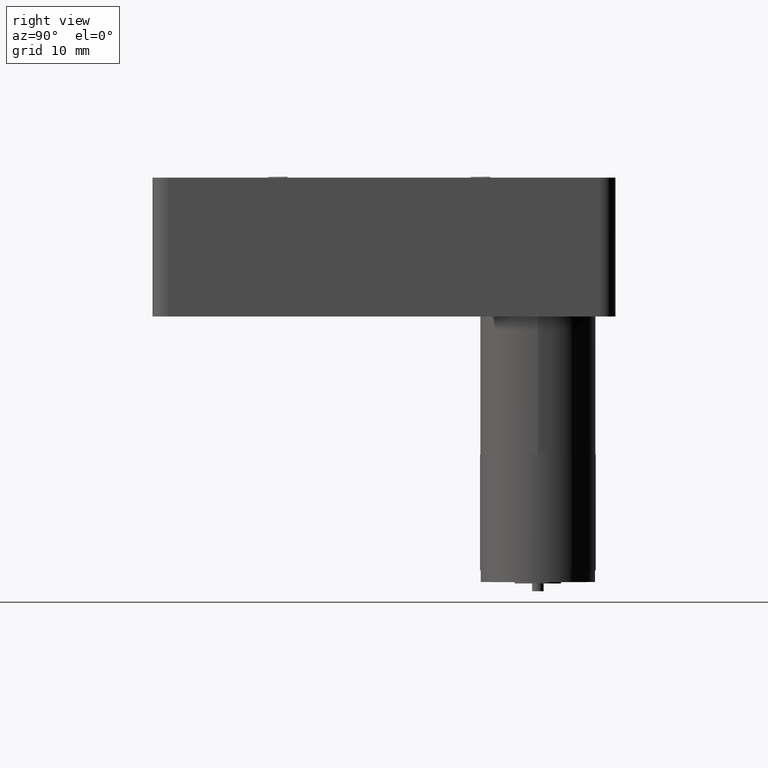
[diagram: clean part render]
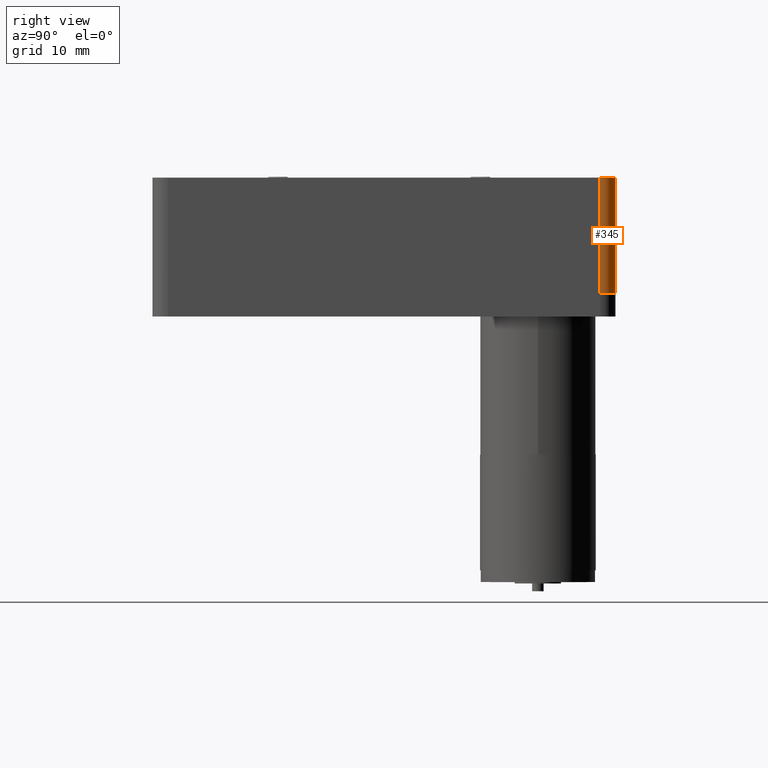
[diagram: same view with one face highlighted and labeled with its STEP entity id]
A machine part, right view. The second image highlights one B-rep face of the part: STEP entity #345.
In plain terms, the highlighted cylindrical surface (edge-blend (fillet) strip) has radius 2 mm, axis along (0, 0, -1).
Its self-contained STEP definition (entity closure, byte-faithful):
#305 = VERTEX_POINT ( 'NONE', #6315 ) ;
#345 = ADVANCED_FACE ( 'NONE', ( #4456 ), #7747, .T. ) ;
#1171 = VECTOR ( 'NONE', #9356, 1000.000000000000000 ) ;
#1218 = ORIENTED_EDGE ( 'NONE', *, *, #4611, .F. ) ;
#1268 = EDGE_LOOP ( 'NONE', ( #2776, #1218, #8878, #4207 ) ) ;
#1500 = EDGE_CURVE ( 'NONE', #2980, #1952, #3383, .T. ) ;
#1873 = CARTESIAN_POINT ( 'NONE',  ( 50.00000000000000000, 57.99999999999999300, 15.00000000000000000 ) ) ;
#1952 = VERTEX_POINT ( 'NONE', #2000 ) ;
#2000 = CARTESIAN_POINT ( 'NONE',  ( 50.00000000000000000, 57.99999999999999300, 0.0000000000000000000 ) ) ;
#2301 = CARTESIAN_POINT ( 'NONE',  ( 48.00000000000000000, 60.00000000000000000, 0.0000000000000000000 ) ) ;
#2305 = CARTESIAN_POINT ( 'NONE',  ( 48.00000000000000000, 57.99999999999999300, 15.00000000000000000 ) ) ;
#2679 = AXIS2_PLACEMENT_3D ( 'NONE', #7735, #2873, #8558 ) ;
#2776 = ORIENTED_EDGE ( 'NONE', *, *, #3950, .F. ) ;
#2873 = DIRECTION ( 'NONE',  ( 0.0000000000000000000, 0.0000000000000000000, -1.000000000000000000 ) ) ;
#2980 = VERTEX_POINT ( 'NONE', #2301 ) ;
#3383 = CIRCLE ( 'NONE', #2679, 2.000000000000001800 ) ;
#3922 = DIRECTION ( 'NONE',  ( -1.000000000000000000, 0.0000000000000000000, 0.0000000000000000000 ) ) ;
#3950 = EDGE_CURVE ( 'NONE', #7414, #305, #5377, .T. ) ;
#4090 = DIRECTION ( 'NONE',  ( -0.0000000000000000000, -0.0000000000000000000, 1.000000000000000000 ) ) ;
#4207 = ORIENTED_EDGE ( 'NONE', *, *, #9450, .F. ) ;
#4456 = FACE_OUTER_BOUND ( 'NONE', #1268, .T. ) ;
#4611 = EDGE_CURVE ( 'NONE', #1952, #7414, #7070, .T. ) ;
#4886 = VECTOR ( 'NONE', #6386, 1000.000000000000000 ) ;
#5316 = AXIS2_PLACEMENT_3D ( 'NONE', #2305, #7155, #3922 ) ;
#5377 = CIRCLE ( 'NONE', #9627, 2.000000000000001800 ) ;
#6315 = CARTESIAN_POINT ( 'NONE',  ( 48.00000000000000000, 60.00000000000000000, 15.00000000000000000 ) ) ;
#6386 = DIRECTION ( 'NONE',  ( -0.0000000000000000000, -0.0000000000000000000, 1.000000000000000000 ) ) ;
#7070 = LINE ( 'NONE', #8784, #4886 ) ;
#7155 = DIRECTION ( 'NONE',  ( 0.0000000000000000000, 0.0000000000000000000, -1.000000000000000000 ) ) ;
#7414 = VERTEX_POINT ( 'NONE', #1873 ) ;
#7611 = LINE ( 'NONE', #10229, #1171 ) ;
#7735 = CARTESIAN_POINT ( 'NONE',  ( 48.00000000000000000, 57.99999999999999300, 0.0000000000000000000 ) ) ;
#7747 = CYLINDRICAL_SURFACE ( 'NONE', #5316, 2.000000000000001800 ) ;
#8558 = DIRECTION ( 'NONE',  ( -1.000000000000000000, 0.0000000000000000000, 0.0000000000000000000 ) ) ;
#8784 = CARTESIAN_POINT ( 'NONE',  ( 50.00000000000000000, 57.99999999999999300, 15.00000000000000000 ) ) ;
#8878 = ORIENTED_EDGE ( 'NONE', *, *, #1500, .F. ) ;
#8941 = CARTESIAN_POINT ( 'NONE',  ( 48.00000000000000000, 57.99999999999999300, 15.00000000000000000 ) ) ;
#9356 = DIRECTION ( 'NONE',  ( 0.0000000000000000000, 0.0000000000000000000, -1.000000000000000000 ) ) ;
#9450 = EDGE_CURVE ( 'NONE', #305, #2980, #7611, .T. ) ;
#9627 = AXIS2_PLACEMENT_3D ( 'NONE', #8941, #4090, #9756 ) ;
#9756 = DIRECTION ( 'NONE',  ( -1.000000000000000000, 0.0000000000000000000, 0.0000000000000000000 ) ) ;
#10229 = CARTESIAN_POINT ( 'NONE',  ( 48.00000000000000000, 60.00000000000000000, 15.00000000000000000 ) ) ;